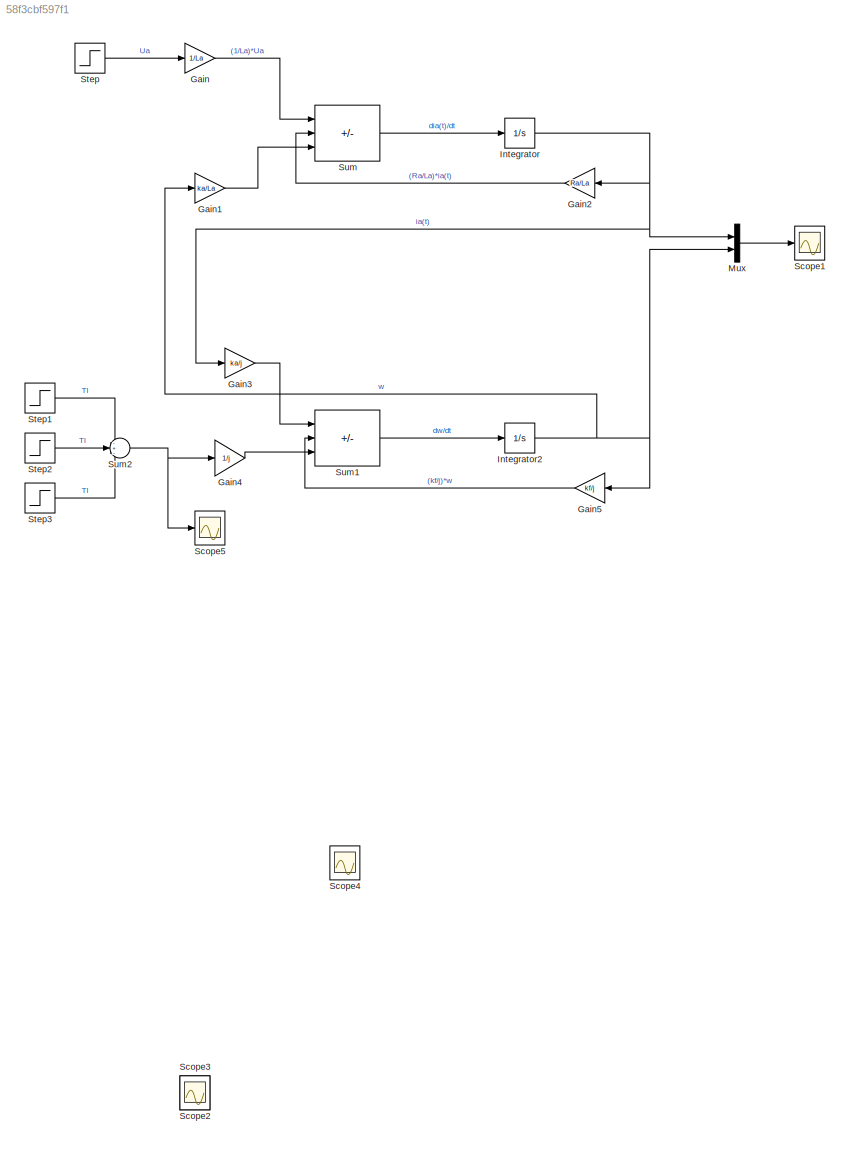
MODEL slx_58f3cbf597f1
KIND model
CONFIG AbsTol = auto
CONFIG EnableMultiTasking = off
CONFIG FixedStep = StepSize
CONFIG MaxStep = auto
CONFIG MinStep = auto
CONFIG RelTol = 1e-3
CONFIG SampleTimeConstraint = Unconstrained
CONFIG SolverName = ode4
CONFIG StartTime = 0.0
CONFIG StopTime = 0.75
BLOCK [Gain] Gain
  Gain = 1/La
BLOCK [Gain] Gain1
  Gain = ka/La
BLOCK [Gain] Gain2
  Gain = Ra/La
  NameLocation = top
BLOCK [Gain] Gain3
  Gain = ka/j
BLOCK [Gain] Gain4
  Gain = 1/j
BLOCK [Gain] Gain5
  Gain = kf/j
  NameLocation = top
BLOCK [Integrator] Integrator
BLOCK [Integrator] Integrator2
BLOCK [Mux] Mux
  DisplayOption = bar
  Inputs = 2
BLOCK [Scope] Scope1
  Floating = off
  NameLocation = right
  NumInputPorts = 1
  ScopeSpecificationString = Simulink.scopes.TimeScopeBlockCfg('CurrentConfiguration', extmgr.ConfigurationSet(extmgr.Configuration('Core','General UI',true),extmgr.Configuration('Core','Source UI',true),extmgr.Configuration('Sources','WiredSimulink',true,'DataLogging',true,'DataLoggingSaveFormat','StructureWithTime'),extmgr.Configuration('Visuals','Time Domain',true,'SerializedDisplays',{struct('MinYLimReal','-1.14707','MaxY...<+2054ch>
BLOCK [Scope] Scope2
  Floating = off
  NameLocation = right
  NumInputPorts = 1
  ScopeSpecificationString = Simulink.scopes.TimeScopeBlockCfg('CurrentConfiguration', extmgr.ConfigurationSet(extmgr.Configuration('Core','General UI',true),extmgr.Configuration('Core','Source UI',true),extmgr.Configuration('Sources','WiredSimulink',true,'DataLogging',true,'DataLoggingSaveFormat','StructureWithTime','DataLoggingVariableName','ScopeData1'),extmgr.Configuration('Visuals','Time Domain',true,'SerializedDisplays'...<+2093ch>
BLOCK [Scope] Scope3
  Floating = off
  NameLocation = right
  NumInputPorts = 1
  ScopeSpecificationString = Simulink.scopes.TimeScopeBlockCfg('CurrentConfiguration', extmgr.ConfigurationSet(extmgr.Configuration('Core','General UI',true),extmgr.Configuration('Core','Source UI',true),extmgr.Configuration('Sources','WiredSimulink',true,'DataLogging',true,'DataLoggingSaveFormat','StructureWithTime','DataLoggingVariableName','ScopeData2'),extmgr.Configuration('Visuals','Time Domain',true,'SerializedDisplays'...<+2093ch>
BLOCK [Scope] Scope4
  Floating = off
  NameLocation = right
  NumInputPorts = 1
  ScopeSpecificationString = Simulink.scopes.TimeScopeBlockCfg('CurrentConfiguration', extmgr.ConfigurationSet(extmgr.Configuration('Core','General UI',true),extmgr.Configuration('Core','Source UI',true),extmgr.Configuration('Sources','WiredSimulink',true,'DataLogging',true,'DataLoggingSaveFormat','StructureWithTime','DataLoggingVariableName','ScopeData3'),extmgr.Configuration('Visuals','Time Domain',true,'SerializedDisplays'...<+2093ch>
BLOCK [Scope] Scope5
  Floating = off
  NameLocation = right
  NumInputPorts = 1
  ScopeSpecificationString = Simulink.scopes.TimeScopeBlockCfg('CurrentConfiguration', extmgr.ConfigurationSet(extmgr.Configuration('Core','General UI',true),extmgr.Configuration('Core','Source UI',true),extmgr.Configuration('Sources','WiredSimulink',true,'DataLogging',true,'DataLoggingSaveFormat','StructureWithTime','DataLoggingVariableName','Tl'),extmgr.Configuration('Visuals','Time Domain',true,'SerializedDisplays',{struct...<+2003ch>
BLOCK [Step] Step
  After = Ua
  Before = Ua
  SampleTime = 0
  Time = 0
BLOCK [Step] Step1
  After = 0.1
  SampleTime = 0
  Time = 0
BLOCK [Step] Step2
  After = 0.2
  SampleTime = 0
  Time = 0.25
BLOCK [Step] Step3
  After = 0.2
  SampleTime = 0
  Time = 0.5
BLOCK [Sum] Sum
  IconShape = rectangular
  Inputs = +--
BLOCK [Sum] Sum1
  IconShape = rectangular
  Inputs = +--
BLOCK [Sum] Sum2
  Inputs = -+-
LINE Gain1:1 -> Sum:3
LINE Gain2:1 -> Sum:2
LINE Gain3:1 -> Sum1:1
LINE Gain4:1 -> Sum1:3
LINE Gain5:1 -> Sum1:2
LINE Gain:1 -> Sum:1
NET Integrator2:1 -> Gain1:1, Gain5:1, Mux:2
NET Integrator:1 -> Gain2:1, Gain3:1, Mux:1
LINE Mux:1 -> Scope1:1
LINE Step1:1 -> Sum2:1
LINE Step2:1 -> Sum2:2
LINE Step3:1 -> Sum2:3
LINE Step:1 -> Gain:1
LINE Sum1:1 -> Integrator2:1
NET Sum2:1 -> Gain4:1, Scope5:1
LINE Sum:1 -> Integrator:1
note: NET lines group one-source signal fan-out (src -> all destinations, sorted); 1:1 wires keep LINE
